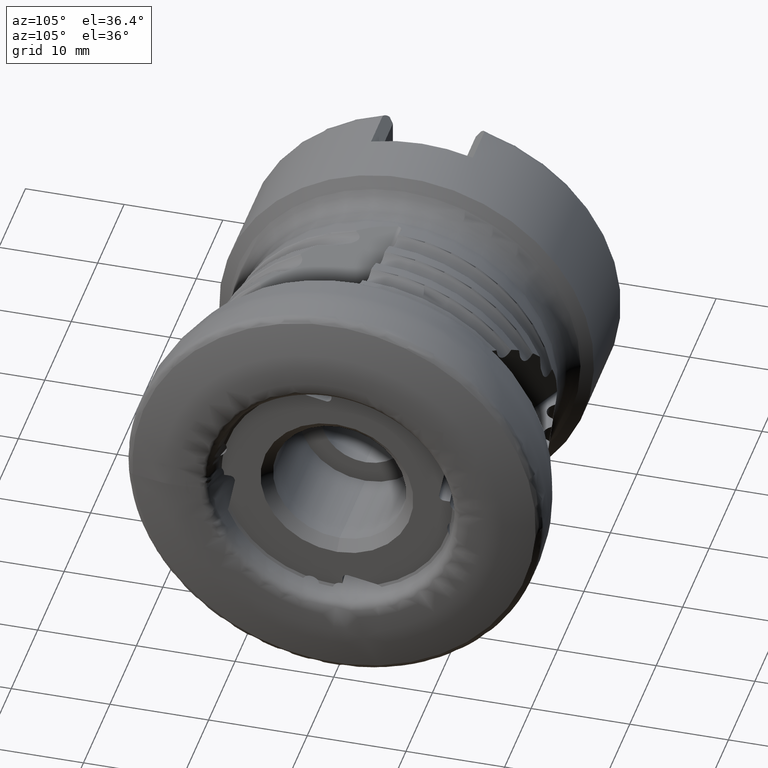
[diagram: clean part render]
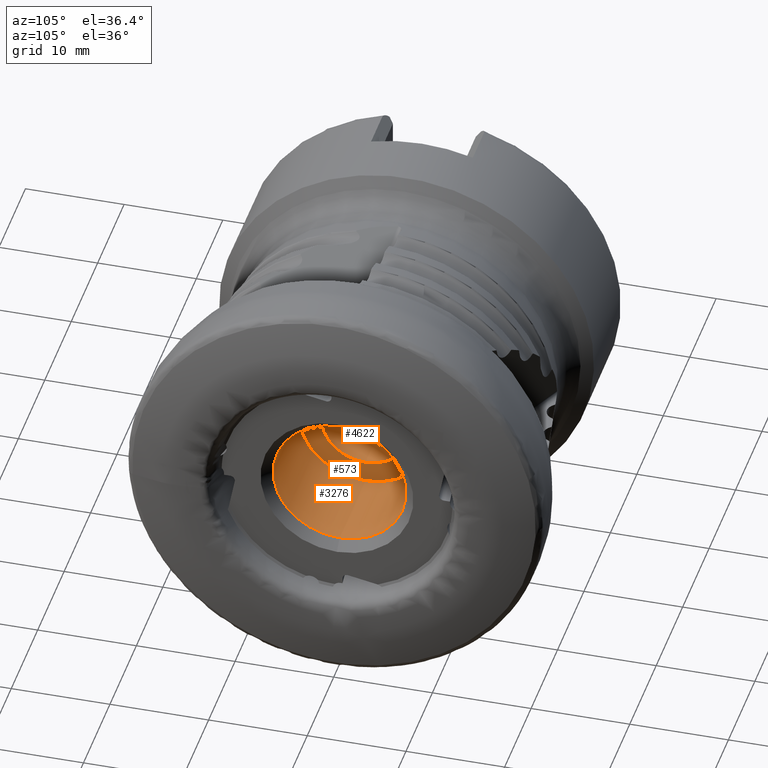
[diagram: same view with one multi-face feature highlighted, each face labeled with its STEP entity id]
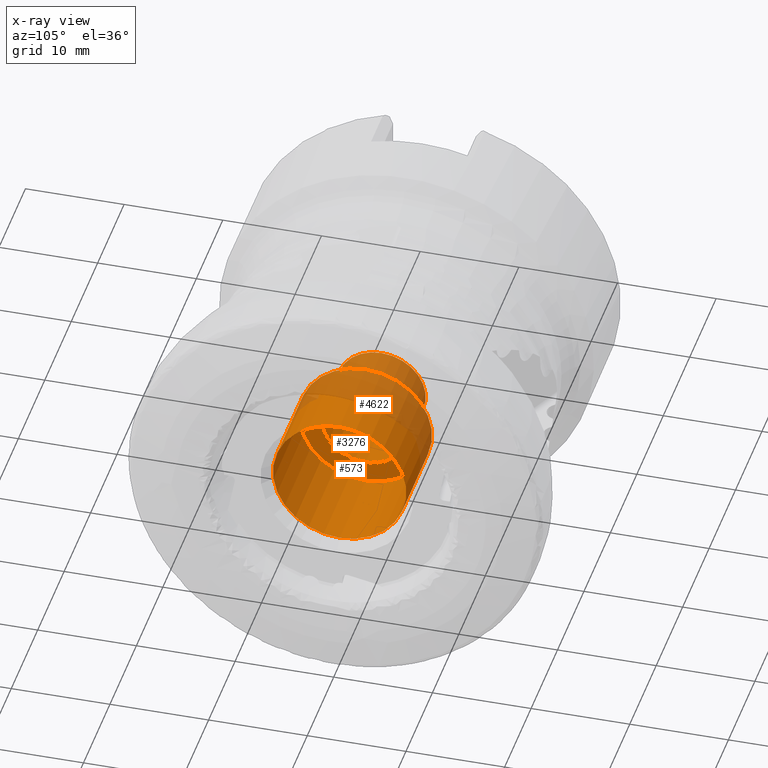
[diagram: x-ray of the same camera — body ghosted, the whole feature saturated]
A machine part, auxiliary view. The highlighted faces form ONE feature: a stepped (counterbored) hole: 2 coaxial cylindrical walls of radii 4.5 -> 6.75 mm joined by 1 annular planar shoulder face(s). The faces share edges in the B-rep.
The next image is the same camera in x-ray: the body ghosted and the whole hole feature saturated, so the bore chain is visible through the body.
Their STEP definitions:
[1] entity #3276 (Cylinder):
#30 = DIRECTION ( 'NONE',  ( 0.0000000000000000000, 0.0000000000000000000, -1.000000000000000000 ) ) ;
#332 = EDGE_LOOP ( 'NONE', ( #2766 ) ) ;
#861 = AXIS2_PLACEMENT_3D ( 'NONE', #2276, #2911, #2882 ) ;
#947 = CIRCLE ( 'NONE', #7248, 6.749999999999999100 ) ;
#1361 = FACE_OUTER_BOUND ( 'NONE', #332, .T. ) ;
#2276 = CARTESIAN_POINT ( 'NONE',  ( 0.0000000000000000000, 0.0000000000000000000, 0.0000000000000000000 ) ) ;
#2325 = VERTEX_POINT ( 'NONE', #3399 ) ;
#2346 = CIRCLE ( 'NONE', #4902, 6.750000000000000000 ) ;
#2541 = CARTESIAN_POINT ( 'NONE',  ( -12.00000000000000000, 0.0000000000000000000, 0.0000000000000000000 ) ) ;
#2596 = EDGE_LOOP ( 'NONE', ( #3558 ) ) ;
#2766 = ORIENTED_EDGE ( 'NONE', *, *, #3961, .T. ) ;
#2882 = DIRECTION ( 'NONE',  ( 0.0000000000000000000, 0.0000000000000000000, -1.000000000000000000 ) ) ;
#2911 = DIRECTION ( 'NONE',  ( 1.000000000000000000, -0.0000000000000000000, -0.0000000000000000000 ) ) ;
#3164 = DIRECTION ( 'NONE',  ( 0.0000000000000000000, 0.0000000000000000000, -1.000000000000000000 ) ) ;
#3276 = ADVANCED_FACE ( 'NONE', ( #4880, #1361 ), #6152, .F. ) ;
#3399 = CARTESIAN_POINT ( 'NONE',  ( -12.00000000000000000, 0.0000000000000000000, -6.749999999999999100 ) ) ;
#3558 = ORIENTED_EDGE ( 'NONE', *, *, #6752, .F. ) ;
#3785 = DIRECTION ( 'NONE',  ( 1.000000000000000000, -0.0000000000000000000, -0.0000000000000000000 ) ) ;
#3961 = EDGE_CURVE ( 'NONE', #7299, #7299, #2346, .T. ) ;
#4880 = FACE_OUTER_BOUND ( 'NONE', #2596, .T. ) ;
#4902 = AXIS2_PLACEMENT_3D ( 'NONE', #7524, #3785, #30 ) ;
#6152 = CYLINDRICAL_SURFACE ( 'NONE', #861, 6.749999999999999100 ) ;
#6503 = CARTESIAN_POINT ( 'NONE',  ( -2.249999999999998700, 0.0000000000000000000, -6.750000000000000000 ) ) ;
#6752 = EDGE_CURVE ( 'NONE', #2325, #2325, #947, .T. ) ;
#6909 = DIRECTION ( 'NONE',  ( 1.000000000000000000, -0.0000000000000000000, -0.0000000000000000000 ) ) ;
#7248 = AXIS2_PLACEMENT_3D ( 'NONE', #2541, #6909, #3164 ) ;
#7299 = VERTEX_POINT ( 'NONE', #6503 ) ;
#7524 = CARTESIAN_POINT ( 'NONE',  ( -2.249999999999998700, 0.0000000000000000000, 0.0000000000000000000 ) ) ;
[2] entity #4622 (Cylinder):
#42 = EDGE_LOOP ( 'NONE', ( #3737 ) ) ;
#833 = VERTEX_POINT ( 'NONE', #2142 ) ;
#979 = EDGE_CURVE ( 'NONE', #4351, #4351, #2477, .T. ) ;
#1031 = CARTESIAN_POINT ( 'NONE',  ( 0.0000000000000000000, 0.0000000000000000000, 0.0000000000000000000 ) ) ;
#1166 = CIRCLE ( 'NONE', #2552, 4.499999999999997300 ) ;
#1651 = EDGE_LOOP ( 'NONE', ( #6644 ) ) ;
#1871 = DIRECTION ( 'NONE',  ( 1.000000000000000000, -0.0000000000000000000, -0.0000000000000000000 ) ) ;
#2142 = CARTESIAN_POINT ( 'NONE',  ( -18.00000000000000000, 0.0000000000000000000, -4.499999999999997300 ) ) ;
#2296 = DIRECTION ( 'NONE',  ( 1.000000000000000000, -0.0000000000000000000, -0.0000000000000000000 ) ) ;
#2477 = CIRCLE ( 'NONE', #6600, 4.499999999999999100 ) ;
#2552 = AXIS2_PLACEMENT_3D ( 'NONE', #5601, #1871, #6227 ) ;
#2733 = CARTESIAN_POINT ( 'NONE',  ( -12.00000000000000000, 0.0000000000000000000, 0.0000000000000000000 ) ) ;
#2840 = CYLINDRICAL_SURFACE ( 'NONE', #5846, 4.499999999999998200 ) ;
#3036 = FACE_OUTER_BOUND ( 'NONE', #42, .T. ) ;
#3344 = EDGE_CURVE ( 'NONE', #833, #833, #1166, .T. ) ;
#3357 = DIRECTION ( 'NONE',  ( 0.0000000000000000000, 0.0000000000000000000, -1.000000000000000000 ) ) ;
#3737 = ORIENTED_EDGE ( 'NONE', *, *, #3344, .F. ) ;
#4351 = VERTEX_POINT ( 'NONE', #6480 ) ;
#4622 = ADVANCED_FACE ( 'NONE', ( #3036, #4682 ), #2840, .F. ) ;
#4682 = FACE_OUTER_BOUND ( 'NONE', #1651, .T. ) ;
#5601 = CARTESIAN_POINT ( 'NONE',  ( -18.00000000000000000, 0.0000000000000000000, 0.0000000000000000000 ) ) ;
#5846 = AXIS2_PLACEMENT_3D ( 'NONE', #1031, #2296, #6664 ) ;
#6227 = DIRECTION ( 'NONE',  ( 0.0000000000000000000, 0.0000000000000000000, -1.000000000000000000 ) ) ;
#6480 = CARTESIAN_POINT ( 'NONE',  ( -12.00000000000000000, 0.0000000000000000000, -4.499999999999999100 ) ) ;
#6600 = AXIS2_PLACEMENT_3D ( 'NONE', #2733, #7095, #3357 ) ;
#6644 = ORIENTED_EDGE ( 'NONE', *, *, #979, .T. ) ;
#6664 = DIRECTION ( 'NONE',  ( 0.0000000000000000000, 0.0000000000000000000, -1.000000000000000000 ) ) ;
#7095 = DIRECTION ( 'NONE',  ( 1.000000000000000000, -0.0000000000000000000, -0.0000000000000000000 ) ) ;
[3] entity #573 (Plane):
#573 = ADVANCED_FACE ( 'NONE', ( #6973, #3843 ), #4068, .F. ) ;
#846 = ORIENTED_EDGE ( 'NONE', *, *, #979, .F. ) ;
#947 = CIRCLE ( 'NONE', #7248, 6.749999999999999100 ) ;
#979 = EDGE_CURVE ( 'NONE', #4351, #4351, #2477, .T. ) ;
#1069 = DIRECTION ( 'NONE',  ( 0.0000000000000000000, 0.0000000000000000000, 1.000000000000000000 ) ) ;
#2325 = VERTEX_POINT ( 'NONE', #3399 ) ;
#2477 = CIRCLE ( 'NONE', #6600, 4.499999999999999100 ) ;
#2541 = CARTESIAN_POINT ( 'NONE',  ( -12.00000000000000000, 0.0000000000000000000, 0.0000000000000000000 ) ) ;
#2733 = CARTESIAN_POINT ( 'NONE',  ( -12.00000000000000000, 0.0000000000000000000, 0.0000000000000000000 ) ) ;
#3164 = DIRECTION ( 'NONE',  ( 0.0000000000000000000, 0.0000000000000000000, -1.000000000000000000 ) ) ;
#3357 = DIRECTION ( 'NONE',  ( 0.0000000000000000000, 0.0000000000000000000, -1.000000000000000000 ) ) ;
#3399 = CARTESIAN_POINT ( 'NONE',  ( -12.00000000000000000, 0.0000000000000000000, -6.749999999999999100 ) ) ;
#3843 = FACE_OUTER_BOUND ( 'NONE', #5200, .T. ) ;
#4068 = PLANE ( 'NONE',  #7992 ) ;
#4180 = CARTESIAN_POINT ( 'NONE',  ( -12.00000000000000000, 6.749999999999999100, 0.0000000000000000000 ) ) ;
#4351 = VERTEX_POINT ( 'NONE', #6480 ) ;
#4804 = DIRECTION ( 'NONE',  ( -1.000000000000000000, 0.0000000000000000000, 0.0000000000000000000 ) ) ;
#5200 = EDGE_LOOP ( 'NONE', ( #8031 ) ) ;
#6480 = CARTESIAN_POINT ( 'NONE',  ( -12.00000000000000000, 0.0000000000000000000, -4.499999999999999100 ) ) ;
#6600 = AXIS2_PLACEMENT_3D ( 'NONE', #2733, #7095, #3357 ) ;
#6752 = EDGE_CURVE ( 'NONE', #2325, #2325, #947, .T. ) ;
#6909 = DIRECTION ( 'NONE',  ( 1.000000000000000000, -0.0000000000000000000, -0.0000000000000000000 ) ) ;
#6973 = FACE_BOUND ( 'NONE', #7993, .T. ) ;
#7095 = DIRECTION ( 'NONE',  ( 1.000000000000000000, -0.0000000000000000000, -0.0000000000000000000 ) ) ;
#7248 = AXIS2_PLACEMENT_3D ( 'NONE', #2541, #6909, #3164 ) ;
#7992 = AXIS2_PLACEMENT_3D ( 'NONE', #4180, #4804, #1069 ) ;
#7993 = EDGE_LOOP ( 'NONE', ( #846 ) ) ;
#8031 = ORIENTED_EDGE ( 'NONE', *, *, #6752, .T. ) ;